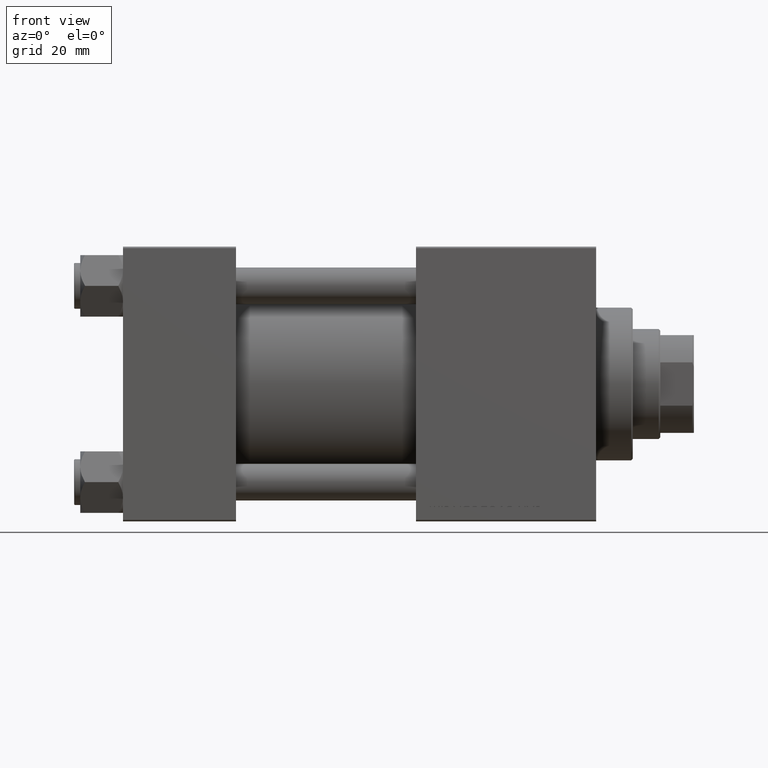
[diagram: clean part render]
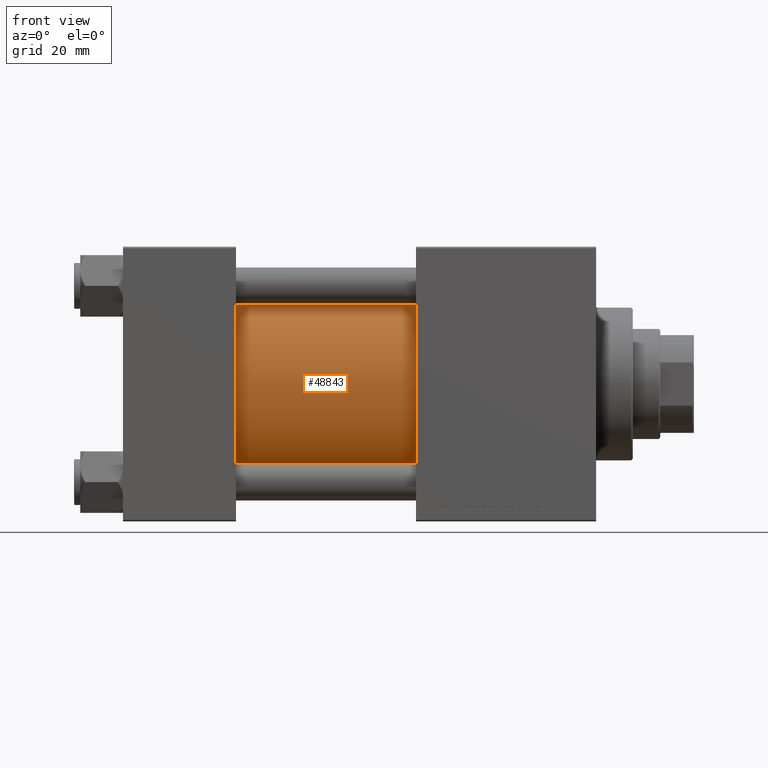
[diagram: same view with one face highlighted and labeled with its STEP entity id]
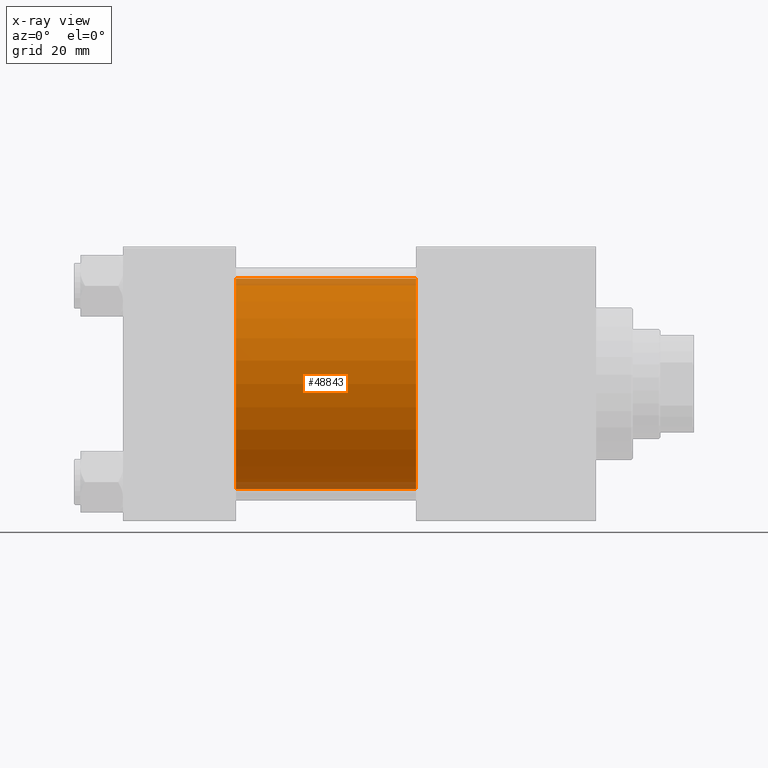
[diagram: x-ray of the same camera — body ghosted, the highlighted face saturated]
A machine part, front view. The second image highlights one B-rep face of the part: STEP entity #48843.
The next image is the same camera in x-ray: the body ghosted, the highlighted face saturated — about 7% of this face is hidden behind the body in this view.
In plain terms, the highlighted cylindrical surface (partial cylindrical patch) has radius 34.5 mm, axis along (-1, -0, -0).
Its self-contained STEP definition (entity closure, byte-faithful):
#1372 = CARTESIAN_POINT ( 'NONE',  ( 96.00000000000000000, -2.602085213965210642E-15, 0.000000000000000000 ) ) ;
#1734 = CARTESIAN_POINT ( 'NONE',  ( 37.00000000000000000, -2.602085213965210642E-15, 34.50000000000000000 ) ) ;
#2058 = CYLINDRICAL_SURFACE ( 'NONE', #8519, 34.50000000000000000 ) ;
#2301 = FACE_OUTER_BOUND ( 'NONE', #13595, .T. ) ;
#3307 = DIRECTION ( 'NONE',  ( 0.000000000000000000, 0.000000000000000000, 1.000000000000000000 ) ) ;
#5613 = DIRECTION ( 'NONE',  ( -1.000000000000000000, -0.000000000000000000, -0.000000000000000000 ) ) ;
#7081 = AXIS2_PLACEMENT_3D ( 'NONE', #1372, #27784, #39965 ) ;
#7629 = CARTESIAN_POINT ( 'NONE',  ( 96.00000000000000000, 1.622946243093158675E-15, -34.50000000000000000 ) ) ;
#8519 = AXIS2_PLACEMENT_3D ( 'NONE', #33278, #5613, #10393 ) ;
#8601 = ORIENTED_EDGE ( 'NONE', *, *, #34312, .T. ) ;
#10393 = DIRECTION ( 'NONE',  ( 0.000000000000000000, 0.000000000000000000, 1.000000000000000000 ) ) ;
#10909 = DIRECTION ( 'NONE',  ( 1.000000000000000000, -0.000000000000000000, 0.000000000000000000 ) ) ;
#13595 = EDGE_LOOP ( 'NONE', ( #29827, #41858, #8601, #26595 ) ) ;
#13660 = VERTEX_POINT ( 'NONE', #7629 ) ;
#17618 = VERTEX_POINT ( 'NONE', #38927 ) ;
#19013 = CARTESIAN_POINT ( 'NONE',  ( 96.00000000000000000, 1.622946243093158675E-15, -34.50000000000000000 ) ) ;
#22300 = EDGE_CURVE ( 'NONE', #17618, #13660, #28181, .T. ) ;
#22856 = VECTOR ( 'NONE', #42387, 1000.000000000000000 ) ;
#26174 = LINE ( 'NONE', #45207, #39822 ) ;
#26595 = ORIENTED_EDGE ( 'NONE', *, *, #40347, .T. ) ;
#27219 = VERTEX_POINT ( 'NONE', #1734 ) ;
#27784 = DIRECTION ( 'NONE',  ( 1.000000000000000000, 0.000000000000000000, 0.000000000000000000 ) ) ;
#28181 = CIRCLE ( 'NONE', #7081, 34.50000000000000000 ) ;
#28446 = VERTEX_POINT ( 'NONE', #42252 ) ;
#29827 = ORIENTED_EDGE ( 'NONE', *, *, #36402, .F. ) ;
#29950 = CARTESIAN_POINT ( 'NONE',  ( 37.00000000000000000, -2.602085213965210642E-15, 0.000000000000000000 ) ) ;
#30262 = CIRCLE ( 'NONE', #36776, 34.50000000000000000 ) ;
#33278 = CARTESIAN_POINT ( 'NONE',  ( 96.00000000000000000, -2.602085213965210642E-15, 0.000000000000000000 ) ) ;
#34312 = EDGE_CURVE ( 'NONE', #17618, #27219, #26174, .T. ) ;
#36402 = EDGE_CURVE ( 'NONE', #13660, #28446, #37581, .T. ) ;
#36776 = AXIS2_PLACEMENT_3D ( 'NONE', #29950, #10909, #3307 ) ;
#37581 = LINE ( 'NONE', #19013, #22856 ) ;
#38927 = CARTESIAN_POINT ( 'NONE',  ( 96.00000000000000000, -2.602085213965210642E-15, 34.50000000000000000 ) ) ;
#39822 = VECTOR ( 'NONE', #41652, 1000.000000000000000 ) ;
#39965 = DIRECTION ( 'NONE',  ( 0.000000000000000000, 0.000000000000000000, -1.000000000000000000 ) ) ;
#40347 = EDGE_CURVE ( 'NONE', #27219, #28446, #30262, .T. ) ;
#41652 = DIRECTION ( 'NONE',  ( -1.000000000000000000, -0.000000000000000000, -0.000000000000000000 ) ) ;
#41858 = ORIENTED_EDGE ( 'NONE', *, *, #22300, .F. ) ;
#42252 = CARTESIAN_POINT ( 'NONE',  ( 37.00000000000000000, 1.622946243093158675E-15, -34.50000000000000000 ) ) ;
#42387 = DIRECTION ( 'NONE',  ( -1.000000000000000000, -0.000000000000000000, -0.000000000000000000 ) ) ;
#45207 = CARTESIAN_POINT ( 'NONE',  ( 96.00000000000000000, -2.602085213965210642E-15, 34.50000000000000000 ) ) ;
#48843 = ADVANCED_FACE ( 'NONE', ( #2301 ), #2058, .T. ) ;